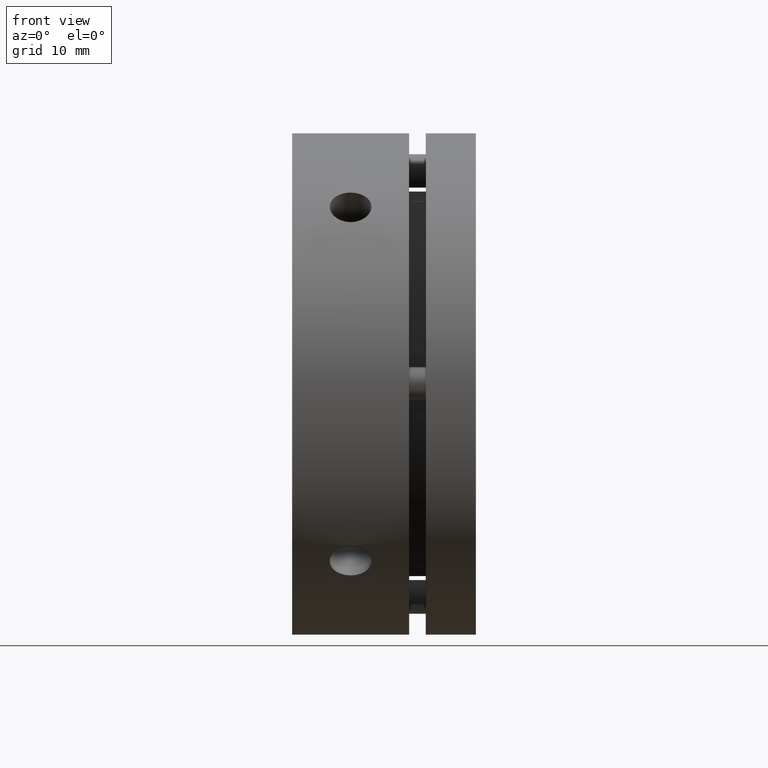
[diagram: clean part render]
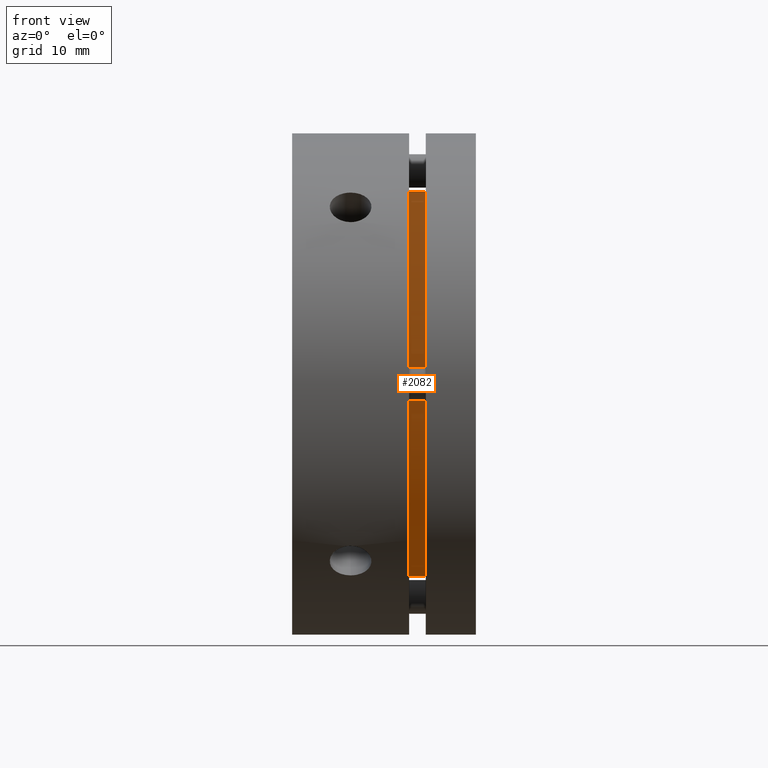
[diagram: same view with one face highlighted and labeled with its STEP entity id]
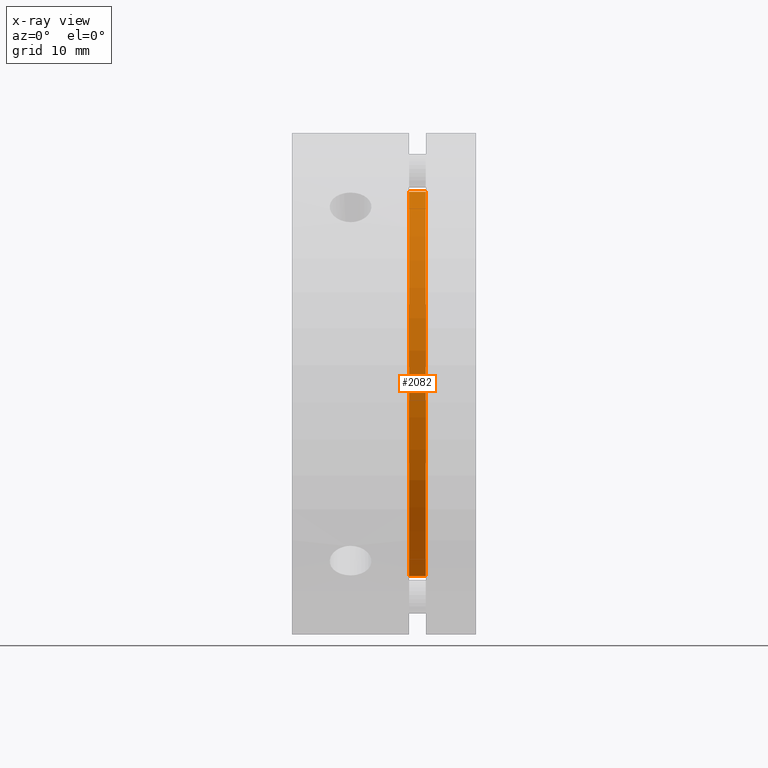
[diagram: x-ray of the same camera — body ghosted, the highlighted face saturated]
A machine part, front view. The second image highlights one B-rep face of the part: STEP entity #2082.
The next image is the same camera in x-ray: the body ghosted, the highlighted face saturated — about 0% of this face is hidden behind the body in this view.
In plain terms, the highlighted cylindrical surface (partial cylindrical patch) has radius 23 mm, axis along (-1, 0, 0).
Its self-contained STEP definition (entity closure, byte-faithful):
#257 = VECTOR ( 'NONE', #2863, 1000.000000000000000 ) ;
#275 = LINE ( 'NONE', #2857, #257 ) ;
#385 = DIRECTION ( 'NONE',  ( 0.0000000000000000000, 0.0000000000000000000, 1.000000000000000000 ) ) ;
#387 = DIRECTION ( 'NONE',  ( -1.000000000000000000, 0.0000000000000000000, 0.0000000000000000000 ) ) ;
#389 = CARTESIAN_POINT ( 'NONE',  ( 15.00000000000000000, 0.0000000000000000000, 0.0000000000000000000 ) ) ;
#462 = CARTESIAN_POINT ( 'NONE',  ( 15.99999999999999600, 0.0000000000000000000, 0.0000000000000000000 ) ) ;
#463 = DIRECTION ( 'NONE',  ( -1.000000000000000000, 0.0000000000000000000, 0.0000000000000000000 ) ) ;
#464 = DIRECTION ( 'NONE',  ( 0.0000000000000000000, 0.0000000000000000000, 1.000000000000000000 ) ) ;
#503 = CARTESIAN_POINT ( 'NONE',  ( 14.00000000000000000, 0.0000000000000000000, 0.0000000000000000000 ) ) ;
#504 = DIRECTION ( 'NONE',  ( 1.000000000000000000, -0.0000000000000000000, -0.0000000000000000000 ) ) ;
#505 = DIRECTION ( 'NONE',  ( 0.0000000000000000000, 0.0000000000000000000, 1.000000000000000000 ) ) ;
#1035 = EDGE_LOOP ( 'NONE', ( #1564, #1388, #1565, #1393 ) ) ;
#1257 = VERTEX_POINT ( 'NONE', #2695 ) ;
#1258 = VERTEX_POINT ( 'NONE', #2697 ) ;
#1261 = VERTEX_POINT ( 'NONE', #2702 ) ;
#1265 = VERTEX_POINT ( 'NONE', #2709 ) ;
#1295 = AXIS2_PLACEMENT_3D ( 'NONE', #389, #387, #385 ) ;
#1312 = AXIS2_PLACEMENT_3D ( 'NONE', #462, #463, #464 ) ;
#1324 = AXIS2_PLACEMENT_3D ( 'NONE', #503, #504, #505 ) ;
#1388 = ORIENTED_EDGE ( 'NONE', *, *, #2523, .T. ) ;
#1393 = ORIENTED_EDGE ( 'NONE', *, *, #2561, .T. ) ;
#1564 = ORIENTED_EDGE ( 'NONE', *, *, #1913, .F. ) ;
#1565 = ORIENTED_EDGE ( 'NONE', *, *, #1886, .T. ) ;
#1826 = LINE ( 'NONE', #2983, #3531 ) ;
#1886 = EDGE_CURVE ( 'NONE', #1261, #1257, #275, .T. ) ;
#1913 = EDGE_CURVE ( 'NONE', #1265, #1258, #1826, .T. ) ;
#2082 = ADVANCED_FACE ( 'NONE', ( #2229 ), #2238, .T. ) ;
#2229 = FACE_OUTER_BOUND ( 'NONE', #1035, .T. ) ;
#2238 = CYLINDRICAL_SURFACE ( 'NONE', #1295, 23.00000000000000700 ) ;
#2294 = CIRCLE ( 'NONE', #1312, 23.00000000000000700 ) ;
#2314 = CIRCLE ( 'NONE', #1324, 23.00000000000000700 ) ;
#2523 = EDGE_CURVE ( 'NONE', #1265, #1261, #2294, .T. ) ;
#2561 = EDGE_CURVE ( 'NONE', #1257, #1258, #2314, .T. ) ;
#2695 = CARTESIAN_POINT ( 'NONE',  ( 14.00000000000000000, 0.0000000000000000000, 23.00000000000000700 ) ) ;
#2697 = CARTESIAN_POINT ( 'NONE',  ( 14.00000000000000000, 2.816687638038913100E-015, -23.00000000000000700 ) ) ;
#2702 = CARTESIAN_POINT ( 'NONE',  ( 15.99999999999999600, 0.0000000000000000000, 23.00000000000000700 ) ) ;
#2709 = CARTESIAN_POINT ( 'NONE',  ( 15.99999999999999600, 2.816687638038913100E-015, -23.00000000000000700 ) ) ;
#2857 = CARTESIAN_POINT ( 'NONE',  ( 15.00000000000000000, 0.0000000000000000000, 23.00000000000000700 ) ) ;
#2863 = DIRECTION ( 'NONE',  ( -1.000000000000000000, 0.0000000000000000000, 0.0000000000000000000 ) ) ;
#2983 = CARTESIAN_POINT ( 'NONE',  ( 15.00000000000000000, 2.816687638038913100E-015, -23.00000000000000700 ) ) ;
#2984 = DIRECTION ( 'NONE',  ( -1.000000000000000000, 0.0000000000000000000, 0.0000000000000000000 ) ) ;
#3531 = VECTOR ( 'NONE', #2984, 1000.000000000000000 ) ;